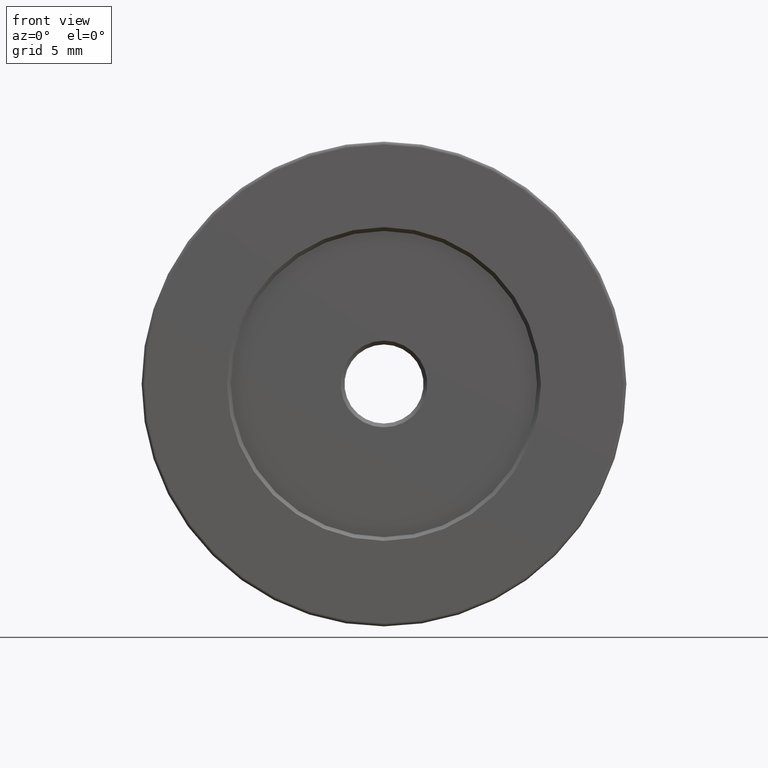
[diagram: clean part render]
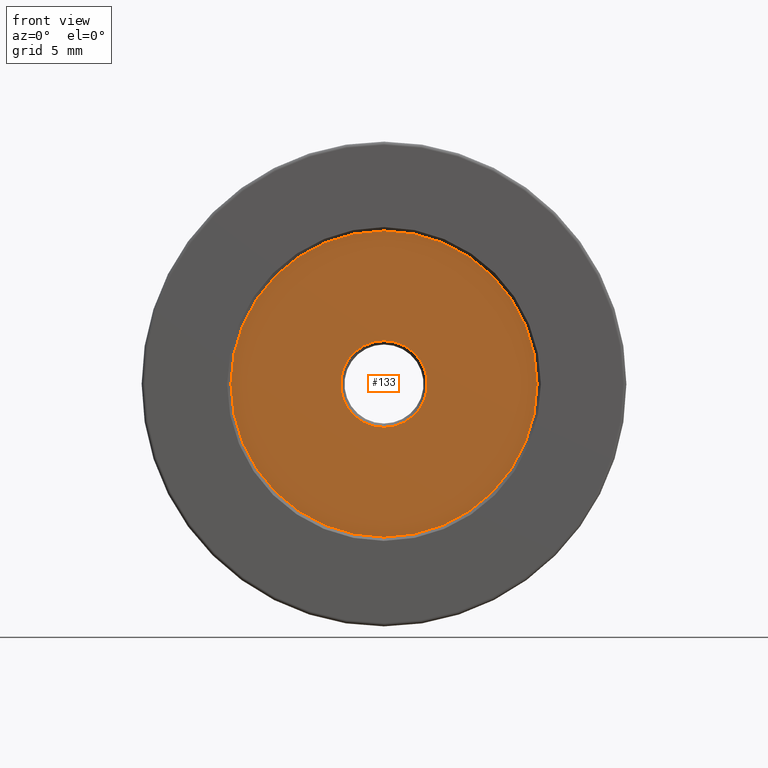
[diagram: same view with one face highlighted and labeled with its STEP entity id]
A machine part, front view. The second image highlights one B-rep face of the part: STEP entity #133.
In plain terms, the highlighted planar face has unit normal (0, -1, 0).
Its self-contained STEP definition (entity closure, byte-faithful):
#44 = CARTESIAN_POINT ( 'NONE',  ( -7.546808913101048510, -12.59359512730272890, 25.99999999999999645 ) ) ;
#48 = AXIS2_PLACEMENT_3D ( 'NONE', #105, #108, #56 ) ;
#56 = DIRECTION ( 'NONE',  ( 0.000000000000000000, 0.000000000000000000, 1.000000000000000000 ) ) ;
#86 = EDGE_LOOP ( 'NONE', ( #106, #478 ) ) ;
#105 = CARTESIAN_POINT ( 'NONE',  ( -7.546808913101048510, -12.59359512730272890, 38.00000000000000000 ) ) ;
#106 = ORIENTED_EDGE ( 'NONE', *, *, #582, .F. ) ;
#108 = DIRECTION ( 'NONE',  ( -0.000000000000000000, 1.000000000000000000, -0.000000000000000000 ) ) ;
#114 = CARTESIAN_POINT ( 'NONE',  ( -7.546808913101046734, -12.59359512730272890, 50.00000000000000000 ) ) ;
#133 = ADVANCED_FACE ( 'NONE', ( #563, #445 ), #539, .T. ) ;
#142 = CARTESIAN_POINT ( 'NONE',  ( -7.546808913101048510, -12.59359512730272890, 34.60000000000000142 ) ) ;
#152 = CIRCLE ( 'NONE', #48, 12.00000000000000355 ) ;
#170 = DIRECTION ( 'NONE',  ( 0.000000000000000000, 0.000000000000000000, -1.000000000000000000 ) ) ;
#178 = DIRECTION ( 'NONE',  ( 0.000000000000000000, 0.000000000000000000, 1.000000000000000000 ) ) ;
#201 = AXIS2_PLACEMENT_3D ( 'NONE', #454, #234, #468 ) ;
#207 = DIRECTION ( 'NONE',  ( 0.000000000000000000, 0.000000000000000000, 1.000000000000000000 ) ) ;
#209 = EDGE_CURVE ( 'NONE', #369, #408, #319, .T. ) ;
#234 = DIRECTION ( 'NONE',  ( -0.000000000000000000, 1.000000000000000000, -0.000000000000000000 ) ) ;
#268 = ORIENTED_EDGE ( 'NONE', *, *, #209, .T. ) ;
#319 = CIRCLE ( 'NONE', #399, 3.400000000000000355 ) ;
#321 = VERTEX_POINT ( 'NONE', #44 ) ;
#334 = EDGE_CURVE ( 'NONE', #408, #369, #348, .T. ) ;
#340 = DIRECTION ( 'NONE',  ( -0.000000000000000000, 1.000000000000000000, -0.000000000000000000 ) ) ;
#346 = DIRECTION ( 'NONE',  ( 0.000000000000000000, -1.000000000000000000, 0.000000000000000000 ) ) ;
#348 = CIRCLE ( 'NONE', #201, 3.400000000000000355 ) ;
#367 = AXIS2_PLACEMENT_3D ( 'NONE', #597, #553, #178 ) ;
#369 = VERTEX_POINT ( 'NONE', #142 ) ;
#393 = EDGE_LOOP ( 'NONE', ( #268, #475 ) ) ;
#399 = AXIS2_PLACEMENT_3D ( 'NONE', #590, #340, #170 ) ;
#408 = VERTEX_POINT ( 'NONE', #517 ) ;
#411 = AXIS2_PLACEMENT_3D ( 'NONE', #531, #346, #207 ) ;
#413 = EDGE_CURVE ( 'NONE', #568, #321, #463, .T. ) ;
#445 = FACE_OUTER_BOUND ( 'NONE', #86, .T. ) ;
#454 = CARTESIAN_POINT ( 'NONE',  ( -7.546808913101048510, -12.59359512730272890, 38.00000000000000000 ) ) ;
#463 = CIRCLE ( 'NONE', #367, 12.00000000000000355 ) ;
#468 = DIRECTION ( 'NONE',  ( 0.000000000000000000, 0.000000000000000000, -1.000000000000000000 ) ) ;
#475 = ORIENTED_EDGE ( 'NONE', *, *, #334, .T. ) ;
#478 = ORIENTED_EDGE ( 'NONE', *, *, #413, .F. ) ;
#517 = CARTESIAN_POINT ( 'NONE',  ( -7.546808913101048510, -12.59359512730272890, 41.39999999999999858 ) ) ;
#531 = CARTESIAN_POINT ( 'NONE',  ( -7.546808913101048510, -12.59359512730272890, 38.00000000000000000 ) ) ;
#539 = PLANE ( 'NONE',  #411 ) ;
#553 = DIRECTION ( 'NONE',  ( -0.000000000000000000, 1.000000000000000000, -0.000000000000000000 ) ) ;
#563 = FACE_BOUND ( 'NONE', #393, .T. ) ;
#568 = VERTEX_POINT ( 'NONE', #114 ) ;
#582 = EDGE_CURVE ( 'NONE', #321, #568, #152, .T. ) ;
#590 = CARTESIAN_POINT ( 'NONE',  ( -7.546808913101048510, -12.59359512730272890, 38.00000000000000000 ) ) ;
#597 = CARTESIAN_POINT ( 'NONE',  ( -7.546808913101048510, -12.59359512730272890, 38.00000000000000000 ) ) ;